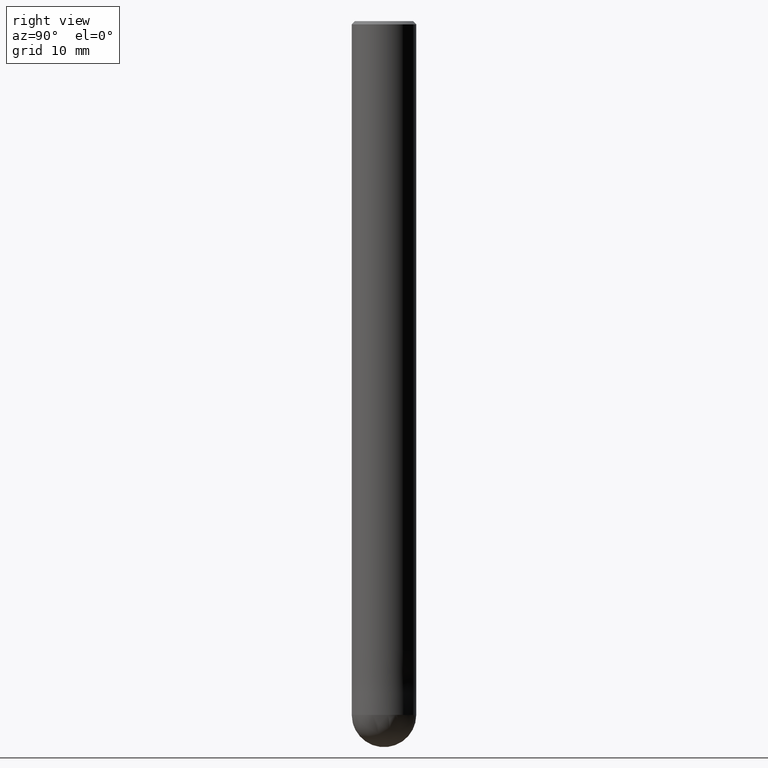
[diagram: clean part render]
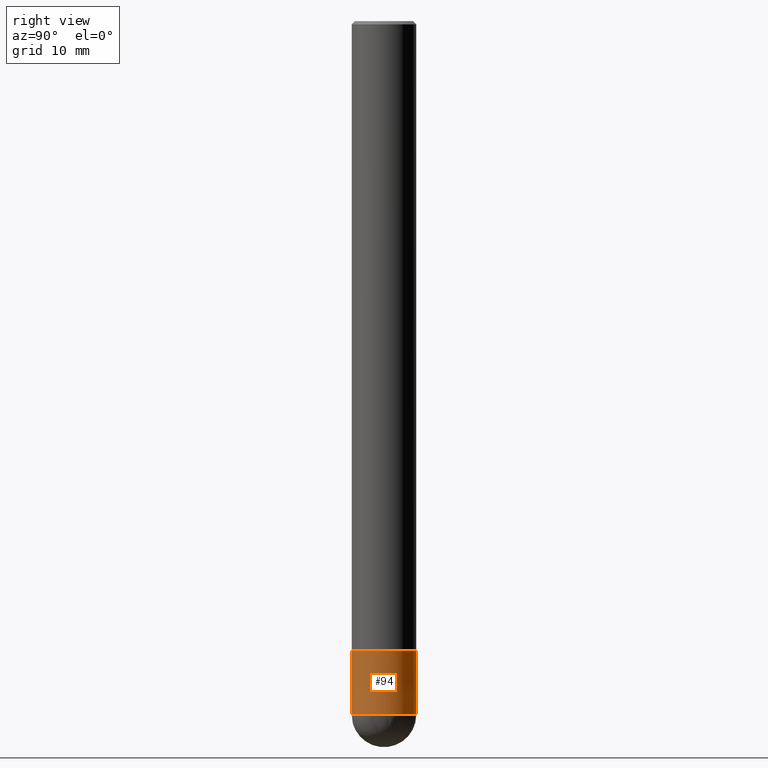
[diagram: same view with one face highlighted and labeled with its STEP entity id]
A machine part, right view. The second image highlights one B-rep face of the part: STEP entity #94.
In plain terms, the highlighted conical surface has half-angle 0.001 deg.
Its self-contained STEP definition (entity closure, byte-faithful):
#72=VERTEX_POINT('',#168);
#80=VERTEX_POINT('',#177);
#82=VERTEX_POINT('',#179);
#84=EDGE_CURVE('',#72,#82,#181,.T.);
#88=EDGE_CURVE('',#128,#80,#185,.T.);
#94=ADVANCED_FACE('',(#192),#193,.T.);
#110=EDGE_CURVE('',#82,#80,#210,.T.);
#128=VERTEX_POINT('',#230);
#130=EDGE_CURVE('',#128,#72,#232,.T.);
#168=CARTESIAN_POINT('',(0.0,4.0,-86.0));
#177=CARTESIAN_POINT('',(4.89830295465413E-016,-3.9999,-78.0));
#179=CARTESIAN_POINT('',(4.89842541528951E-016,-4.0,-86.0));
#181=CIRCLE('',#277,4.0);
#185=CIRCLE('',#284,3.9999);
#192=FACE_OUTER_BOUND('',#293,.T.);
#193=CONICAL_SURFACE('',#294,3.99995,1.24999999993753E-005);
#210=LINE('',#315,#316);
#230=CARTESIAN_POINT('',(0.0,3.9999,-78.0));
#232=LINE('',#344,#345);
#277=AXIS2_PLACEMENT_3D('',#390,#391,#392);
#284=AXIS2_PLACEMENT_3D('',#394,#395,#396);
#293=EDGE_LOOP('',(#407,#408,#409,#410));
#294=AXIS2_PLACEMENT_3D('',#411,#412,#413);
#315=CARTESIAN_POINT('',(4.89836418497182E-016,-3.99995,-82.0));
#316=VECTOR('',#431,1.0);
#344=CARTESIAN_POINT('',(-4.89836418497182E-016,3.99995,-82.0));
#345=VECTOR('',#460,1.0);
#390=CARTESIAN_POINT('',(0.0,0.0,-86.0));
#391=DIRECTION('',(0.0,0.0,-1.0));
#392=DIRECTION('',(0.0,1.0,0.0));
#394=CARTESIAN_POINT('',(0.0,0.0,-78.0));
#395=DIRECTION('',(0.0,0.0,-1.0));
#396=DIRECTION('',(0.0,1.0,0.0));
#407=ORIENTED_EDGE('',*,*,#130,.F.);
#408=ORIENTED_EDGE('',*,*,#88,.T.);
#409=ORIENTED_EDGE('',*,*,#110,.F.);
#410=ORIENTED_EDGE('',*,*,#84,.F.);
#411=CARTESIAN_POINT('',(0.0,0.0,-82.0));
#412=DIRECTION('',(0.0,-0.0,-1.0));
#413=DIRECTION('',(0.0,1.0,0.0));
#431=DIRECTION('',(-1.53075794216161E-021,1.24999999990498E-005,0.999999999921875));
#460=DIRECTION('',(-1.53075794216161E-021,1.24999999990498E-005,-0.999999999921875));